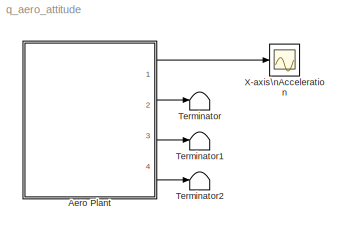
MODEL q_aero_attitude
KIND model
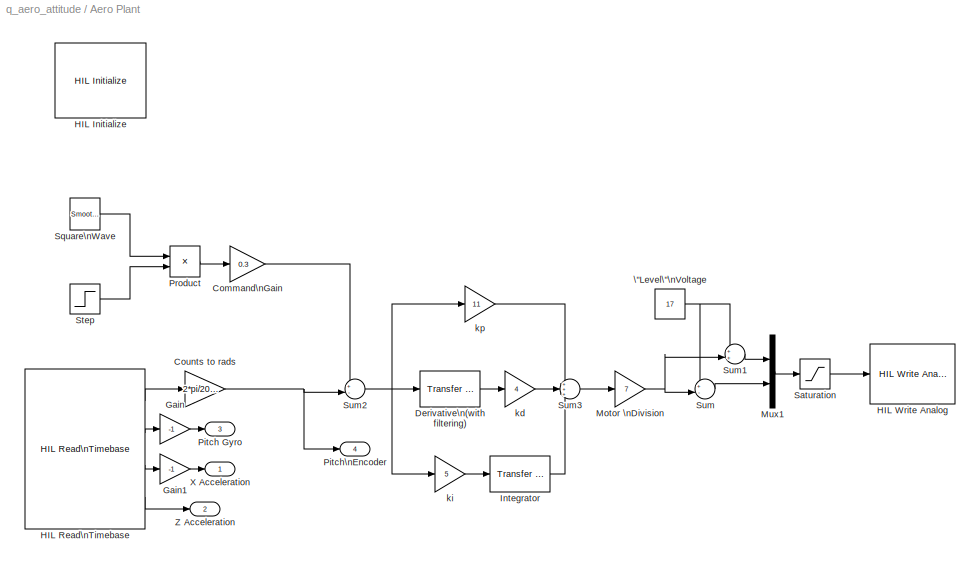
BLOCK [SubSystem] Aero Plant
  Ports = [0, 4]
  RequestExecContextInheritance = off
  SID = 140
BLOCK [Gain] Aero Plant/Command\nGain
  Gain = 0.3
  OutDataTypeStr = Inherit: Inherit via internal rule
  ParamDataTypeStr = Inherit: Inherit via internal rule
  SID = 119
  SaturateOnIntegerOverflow = off
BLOCK [Gain] Aero Plant/Counts to rads
  Gain = 2*pi/2048
  OutDataTypeStr = Inherit: Inherit via internal rule
  ParamDataTypeStr = Inherit: Inherit via internal rule
  SID = 38
  SaturateOnIntegerOverflow = off
BLOCK [Reference] Aero Plant/Derivative\n(with filtering)  REF=simulink_extras/Additional\nLinear/Transfer Fcn\n(with initial states)
  D = [1 20]
  N = [20 0]
  Ports = [1, 1]
  RTWMemSecDataConstants = Inherit from model
  RTWMemSecDataInternal = Inherit from model
  RTWMemSecDataParameters = Inherit from model
  RTWMemSecFuncExecute = Inherit from model
  RTWMemSecFuncInitTerm = Inherit from model
  SID = 133
  SourceBlock = simulink_extras/Additional\nLinear/Transfer Fcn\n(with initial states)
  SourceProductBaseCode = SL
  SourceProductName = Simulink
  SourceType = Transfer Function with Initial States
  X0 = 0
BLOCK [Gain] Aero Plant/Gain
  Gain = -1
  OutDataTypeStr = Inherit: Inherit via internal rule
  ParamDataTypeStr = Inherit: Inherit via internal rule
  SID = 211
  SaturateOnIntegerOverflow = off
BLOCK [Gain] Aero Plant/Gain1
  Gain = -1
  OutDataTypeStr = Inherit: Inherit via internal rule
  ParamDataTypeStr = Inherit: Inherit via internal rule
  SID = 212
  SaturateOnIntegerOverflow = off
BLOCK [Reference] Aero Plant/HIL Initialize  REF=quarc_library/Data Acquisition/Generic/Configuration/HIL Initialize
  AttributesFormatString = %<object_name> (%<board_type>-%<board_number>)
  Ports = []
  Priority = -99
  SID = 124
  SourceBlock = quarc_library/Data Acquisition/Generic/Configuration/HIL Initialize
  SourceType = HIL Initialize
  UserData = DataTag0
  UserDataPersistent = on
  active = off
  analog_input_channels = [0:1]
  analog_input_maximums = 3
  analog_input_minimums = -3
  analog_output_channels = [0:1]
  analog_output_maximums = 24
  analog_output_minimums = -24
  board_number = 0
  board_type = quanser_aero_usb
  clock_modes = []
  digital_input_channels = []
  digital_output_channels = [0:1]
  digital_output_configuration = []
  encoder_channels = [0:3]
  encoder_filter_frequency = []
  exclusive = off
  final_analog_outputs = [0]
  final_digital_outputs = [0]
  final_other_outputs = [1 0 0]
  final_pwm_outputs = []
  hardware_clocks = [0]
  initial_analog_outputs = [0]
  initial_clock_frequencies = []
  initial_digital_outputs = [1]
  initial_encoder_counts = [0]
  initial_other_outputs = [0 1 0]
  initial_pwm_outputs = []
  object_name = HIL-1
  other_output_channels = [11000:11002]
  pwm_alignment = []
  pwm_channels = []
  pwm_configuration = []
  pwm_frequency = []
  pwm_leading_deadband = []
  pwm_modes = []
  pwm_polarity = []
  pwm_trailing_deadband = []
  quadrature = [4]
  set_analog_input_params_at_start = off
  set_analog_input_params_at_switch_in = off
  set_analog_output_params_at_start = off
  set_analog_output_params_at_switch_in = off
  set_analog_outputs_at_start = on
  set_analog_outputs_at_switch_in = off
  set_analog_outputs_at_switch_out = off
  set_analog_outputs_at_terminate = on
  set_analog_outputs_on_watchdog = off
  set_clock_frequencies_at_start = off
  set_clock_frequencies_at_switch_in = off
  set_clock_params_at_start = off
  set_clock_params_at_switch_in = off
  set_digital_output_params_at_start = off
  set_digital_output_params_at_switch_in = off
  set_digital_outputs_at_start = on
  set_digital_outputs_at_switch_in = off
  set_digital_outputs_at_switch_out = off
  set_digital_outputs_at_terminate = on
  set_digital_outputs_on_watchdog = off
  set_encoder_counts_at_start = on
  set_encoder_counts_at_switch_in = off
  set_encoder_params_at_start = off
  set_encoder_params_at_switch_in = off
  set_other_outputs_at_start = on
  set_other_outputs_at_switch_in = off
  set_other_outputs_at_switch_out = off
  set_other_outputs_at_terminate = on
  set_other_outputs_on_watchdog = off
  set_pwm_outputs_at_start = off
  set_pwm_outputs_at_switch_in = off
  set_pwm_outputs_at_switch_out = off
  set_pwm_outputs_at_terminate = off
  set_pwm_outputs_on_watchdog = off
  set_pwm_params_at_start = off
  set_pwm_params_at_switch_in = off
  watchdog_analog_outputs = [0]
  watchdog_digital_outputs = [0]
  watchdog_other_outputs = [0 0 1]
  watchdog_pwm_outputs = []
BLOCK [Reference] Aero Plant/HIL Read\nTimebase  REF=quarc_library/Data Acquisition/Generic/Timebases/HIL Read\nTimebase
  AttributesFormatString = (%<object_name>)
  Ports = [0, 4]
  SID = 141
  SourceBlock = quarc_library/Data Acquisition/Generic/Timebases/HIL Read\nTimebase
  SourceType = HIL Read Timebase
  UserData = DataTag1
  UserDataPersistent = on
  active = on
  analog_channels = []
  clock = 0
  data_type_mode = Inherit via back propagation
  digital_channels = []
  digital_data_type = boolean
  encoder_channels = [2]
  encoder_data_type = double
  object_name = HIL-1
  other_channels = [3001 4000 4002]
  samples_in_buffer = max(ceil(1/qc_get_step_size), 1)
  vector_output = off
BLOCK [Reference] Aero Plant/HIL Write Analog  REF=quarc_library/Data Acquisition/Generic/Immediate I//O/HIL Write Analog
  AttributesFormatString = (%<object_name>)
  Ports = [1]
  SID = 18
  SourceBlock = quarc_library/Data Acquisition/Generic/Immediate I//O/HIL Write Analog
  SourceType = HIL Write Analog
  UserData = DataTag2
  UserDataPersistent = on
  active = off
  channels = [0:1]
  object_name = HIL-1
  sample_time = -1
  vector_input = on
BLOCK [Reference] Aero Plant/Integrator  REF=simulink_extras/Additional\nLinear/Transfer Fcn\n(with initial states)
  D = [1 0]
  N = [1]
  Ports = [1, 1]
  RTWMemSecDataConstants = Inherit from model
  RTWMemSecDataInternal = Inherit from model
  RTWMemSecDataParameters = Inherit from model
  RTWMemSecFuncExecute = Inherit from model
  RTWMemSecFuncInitTerm = Inherit from model
  SID = 134
  SourceBlock = simulink_extras/Additional\nLinear/Transfer Fcn\n(with initial states)
  SourceProductBaseCode = SL
  SourceProductName = Simulink
  SourceType = Transfer Function with Initial States
  X0 = 0
BLOCK [Gain] Aero Plant/Motor \nDivision
  Gain = 7
  OutDataTypeStr = Inherit: Inherit via internal rule
  ParamDataTypeStr = Inherit: Inherit via internal rule
  SID = 123
  SaturateOnIntegerOverflow = off
BLOCK [Mux] Aero Plant/Mux1
  DisplayOption = bar
  Inputs = 2
  Ports = [2, 1]
  SID = 93
BLOCK [Outport] Aero Plant/Pitch Gyro
  IconDisplay = Port number
  Port = 3
  SID = 146
BLOCK [Outport] Aero Plant/Pitch\nEncoder
  IconDisplay = Port number
  Port = 4
  SID = 160
BLOCK [Product] Aero Plant/Product
  InputSameDT = off
  OutDataTypeStr = Inherit: Inherit via internal rule
  Ports = [2, 1]
  RndMeth = Floor
  SID = 159
  SaturateOnIntegerOverflow = off
BLOCK [Saturate] Aero Plant/Saturation
  InputPortMap = u0
  LowerLimit = 10
  Ports = [1, 1]
  SID = 139
  UpperLimit = 24
BLOCK [Reference] Aero Plant/Square\nWave  REF=quarc_library/Sources/Signals/Smooth Signal\nGenerator
  Ports = [0, 1]
  SID = 91
  SourceBlock = quarc_library/Sources/Signals/Smooth Signal\nGenerator
  SourceType = Smooth Signal Generator
  amplitude = 1
  frequency = 0.1
  initial_phase = pi
  output_cos = off
  sample_time = qc_get_step_size
  signal_type = Square
  source = Internal (dialog parameters)
BLOCK [Step] Aero Plant/Step
  SID = 158
  SampleTime = 0
  Time = 5
BLOCK [Sum] Aero Plant/Sum
  IconShape = round
  InputSameDT = off
  Inputs = +-|
  OutDataTypeStr = Inherit: Inherit via internal rule
  Ports = [2, 1]
  SID = 116
  SaturateOnIntegerOverflow = off
BLOCK [Sum] Aero Plant/Sum1
  IconShape = round
  InputSameDT = off
  Inputs = ++|
  OutDataTypeStr = Inherit: Inherit via internal rule
  Ports = [2, 1]
  SID = 117
  SaturateOnIntegerOverflow = off
BLOCK [Sum] Aero Plant/Sum2
  IconShape = round
  InputSameDT = off
  Inputs = +-|
  OutDataTypeStr = Inherit: Inherit via internal rule
  Ports = [2, 1]
  SID = 125
  SaturateOnIntegerOverflow = off
BLOCK [Sum] Aero Plant/Sum3
  IconShape = round
  InputSameDT = off
  Inputs = +++
  OutDataTypeStr = Inherit: Inherit via internal rule
  Ports = [3, 1]
  SID = 131
  SaturateOnIntegerOverflow = off
BLOCK [Outport] Aero Plant/X Acceleration
  IconDisplay = Port number
  SID = 149
BLOCK [Outport] Aero Plant/Z Acceleration
  IconDisplay = Port number
  Port = 2
  SID = 155
BLOCK [Constant] Aero Plant/\"Level\"\nVoltage
  SID = 118
  Value = 17
BLOCK [Gain] Aero Plant/kd
  Gain = 4
  OutDataTypeStr = Inherit: Inherit via internal rule
  ParamDataTypeStr = Inherit: Inherit via internal rule
  SID = 132
  SaturateOnIntegerOverflow = off
BLOCK [Gain] Aero Plant/ki
  Gain = 5
  OutDataTypeStr = Inherit: Inherit via internal rule
  ParamDataTypeStr = Inherit: Inherit via internal rule
  SID = 135
  SaturateOnIntegerOverflow = off
BLOCK [Gain] Aero Plant/kp
  Gain = 11
  OutDataTypeStr = Inherit: Inherit via internal rule
  ParamDataTypeStr = Inherit: Inherit via internal rule
  SID = 128
  SaturateOnIntegerOverflow = off
BLOCK [Terminator] Terminator
  SID = 208
BLOCK [Terminator] Terminator1
  SID = 209
BLOCK [Terminator] Terminator2
  SID = 210
BLOCK [Scope] X-axis\nAcceleration
  Floating = off
  NumInputPorts = 1
  Ports = [1]
  SID = 150
  ScopeSpecificationString = Simulink.scopes.TimeScopeBlockCfg('CurrentConfiguration', extmgr.ConfigurationSet(extmgr.Configuration('Core','General UI',true),extmgr.Configuration('Core','Source UI',true),extmgr.Configuration('Sources','WiredSimulink',true,'DataLogging',true,'DataLoggingVariableName','XData','DataLoggingMaxPoints','15000','DataLoggingLimitDataPoints',true,'DataLoggingSaveFormat','Array','DataLoggingDecimation'...<+1752ch>
LINE Aero Plant/Command\nGain:1 -> Aero Plant/Sum2:1
NET Aero Plant/Counts to rads:1 -> Aero Plant/Pitch\nEncoder:1, Aero Plant/Sum2:2
LINE Aero Plant/Derivative\n(with filtering):1 -> Aero Plant/kd:1
LINE Aero Plant/Gain1:1 -> Aero Plant/X Acceleration:1
LINE Aero Plant/Gain:1 -> Aero Plant/Pitch Gyro:1
LINE Aero Plant/HIL Read\nTimebase:1 -> Aero Plant/Counts to rads:1
LINE Aero Plant/HIL Read\nTimebase:2 -> Aero Plant/Gain:1
LINE Aero Plant/HIL Read\nTimebase:3 -> Aero Plant/Gain1:1
LINE Aero Plant/HIL Read\nTimebase:4 -> Aero Plant/Z Acceleration:1
LINE Aero Plant/Integrator:1 -> Aero Plant/Sum3:3
NET Aero Plant/Motor \nDivision:1 -> Aero Plant/Sum1:2, Aero Plant/Sum:2
LINE Aero Plant/Mux1:1 -> Aero Plant/Saturation:1
LINE Aero Plant/Product:1 -> Aero Plant/Command\nGain:1
LINE Aero Plant/Saturation:1 -> Aero Plant/HIL Write Analog:1
LINE Aero Plant/Square\nWave:1 -> Aero Plant/Product:1
LINE Aero Plant/Step:1 -> Aero Plant/Product:2
LINE Aero Plant/Sum1:1 -> Aero Plant/Mux1:1
NET Aero Plant/Sum2:1 -> Aero Plant/Derivative\n(with filtering):1, Aero Plant/ki:1, Aero Plant/kp:1
LINE Aero Plant/Sum3:1 -> Aero Plant/Motor \nDivision:1
LINE Aero Plant/Sum:1 -> Aero Plant/Mux1:2
NET Aero Plant/\"Level\"\nVoltage:1 -> Aero Plant/Sum1:1, Aero Plant/Sum:1
LINE Aero Plant/kd:1 -> Aero Plant/Sum3:2
LINE Aero Plant/ki:1 -> Aero Plant/Integrator:1
LINE Aero Plant/kp:1 -> Aero Plant/Sum3:1
LINE Aero Plant:1 -> X-axis\nAcceleration:1
LINE Aero Plant:2 -> Terminator:1
LINE Aero Plant:3 -> Terminator1:1
LINE Aero Plant:4 -> Terminator2:1
note: NET lines group one-source signal fan-out (src -> all destinations, sorted); 1:1 wires keep LINE
